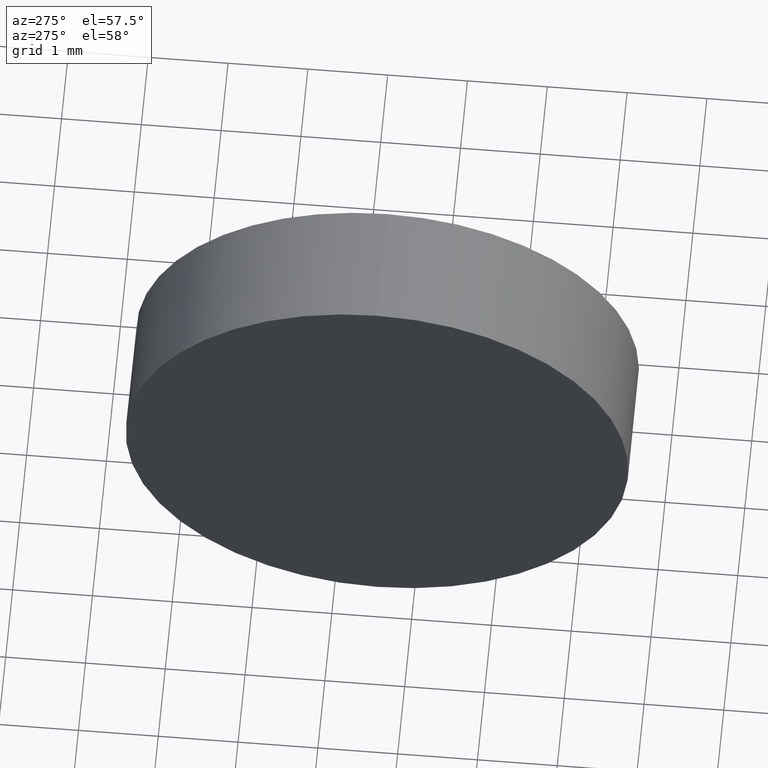
[diagram: clean part render]
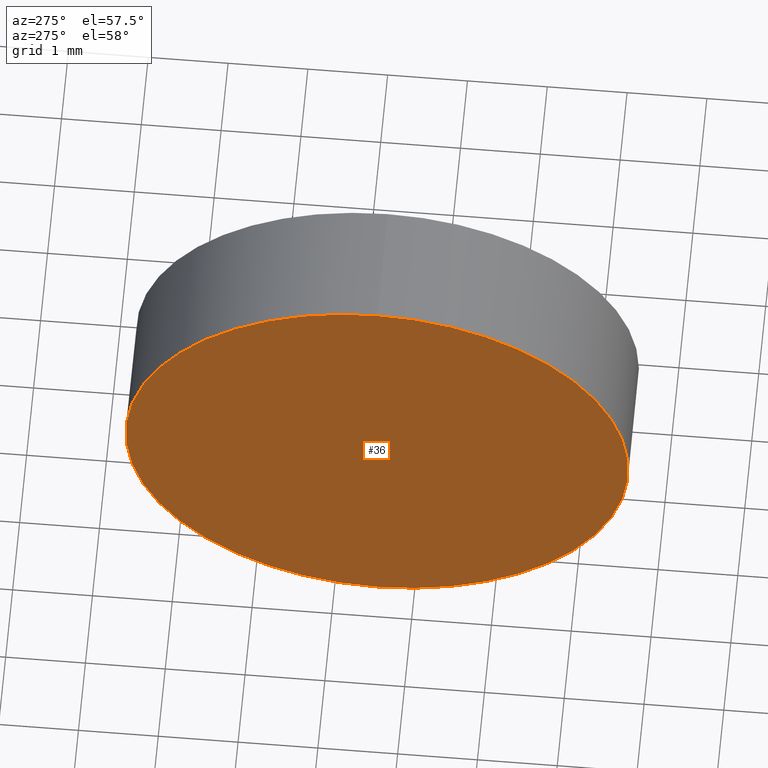
[diagram: same view with one face highlighted and labeled with its STEP entity id]
A machine part, auxiliary view. The second image highlights one B-rep face of the part: STEP entity #36.
In plain terms, the highlighted planar face has unit normal (1, 0, 0).
Its self-contained STEP definition (entity closure, byte-faithful):
#10 = VERTEX_POINT ( 'NONE', #106 ) ;
#16 = EDGE_CURVE ( 'NONE', #152, #10, #173, .T. ) ;
#24 = CIRCLE ( 'NONE', #118, 3.149999999999999900 ) ;
#36 = ADVANCED_FACE ( 'NONE', ( #139 ), #63, .F. ) ;
#45 = ORIENTED_EDGE ( 'NONE', *, *, #16, .T. ) ;
#53 = DIRECTION ( 'NONE',  ( -1.000000000000000000, -0.0000000000000000000, -0.0000000000000000000 ) ) ;
#55 = CARTESIAN_POINT ( 'NONE',  ( 564.3534668315505800, 45.46463200526830000, 0.0000000000000000000 ) ) ;
#63 = PLANE ( 'NONE',  #160 ) ;
#73 = AXIS2_PLACEMENT_3D ( 'NONE', #163, #79, #103 ) ;
#79 = DIRECTION ( 'NONE',  ( -1.000000000000000000, -0.0000000000000000000, -0.0000000000000000000 ) ) ;
#103 = DIRECTION ( 'NONE',  ( 0.0000000000000000000, 0.0000000000000000000, 1.000000000000000000 ) ) ;
#106 = CARTESIAN_POINT ( 'NONE',  ( 564.3534668315505800, 45.46463200526830000, -3.149999999999999900 ) ) ;
#118 = AXIS2_PLACEMENT_3D ( 'NONE', #55, #53, #142 ) ;
#119 = DIRECTION ( 'NONE',  ( 0.0000000000000000000, 0.0000000000000000000, -1.000000000000000000 ) ) ;
#139 = FACE_OUTER_BOUND ( 'NONE', #147, .T. ) ;
#142 = DIRECTION ( 'NONE',  ( 0.0000000000000000000, 0.0000000000000000000, 1.000000000000000000 ) ) ;
#147 = EDGE_LOOP ( 'NONE', ( #45, #171 ) ) ;
#148 = EDGE_CURVE ( 'NONE', #10, #152, #24, .T. ) ;
#152 = VERTEX_POINT ( 'NONE', #167 ) ;
#160 = AXIS2_PLACEMENT_3D ( 'NONE', #165, #174, #119 ) ;
#163 = CARTESIAN_POINT ( 'NONE',  ( 564.3534668315505800, 45.46463200526830000, 0.0000000000000000000 ) ) ;
#165 = CARTESIAN_POINT ( 'NONE',  ( 564.3534668315505800, 45.46463200526830000, 0.0000000000000000000 ) ) ;
#167 = CARTESIAN_POINT ( 'NONE',  ( 564.3534668315505800, 45.46463200526830000, 3.149999999999999900 ) ) ;
#171 = ORIENTED_EDGE ( 'NONE', *, *, #148, .T. ) ;
#173 = CIRCLE ( 'NONE', #73, 3.149999999999999900 ) ;
#174 = DIRECTION ( 'NONE',  ( 1.000000000000000000, 0.0000000000000000000, 0.0000000000000000000 ) ) ;